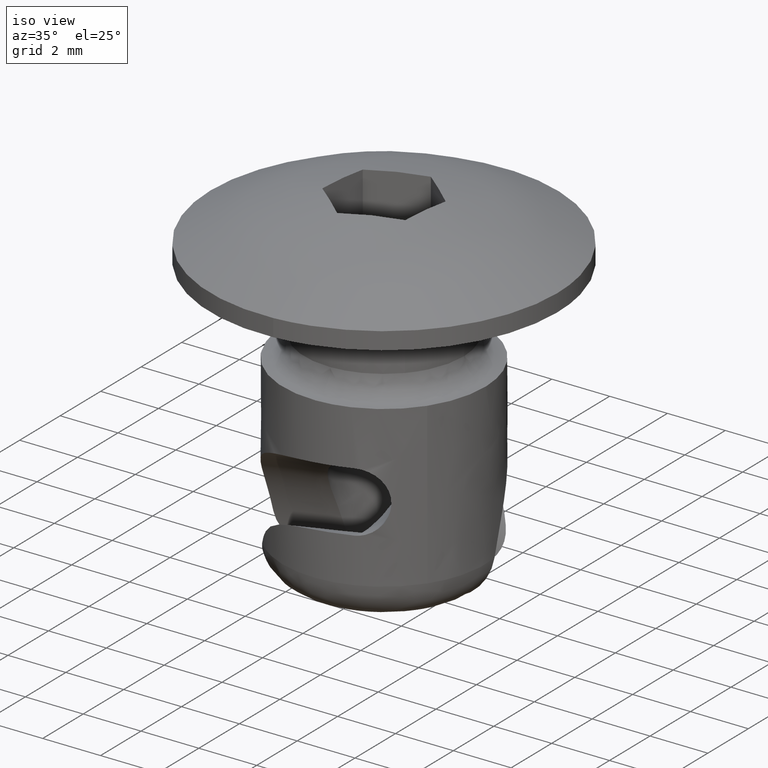
[diagram: clean part render]
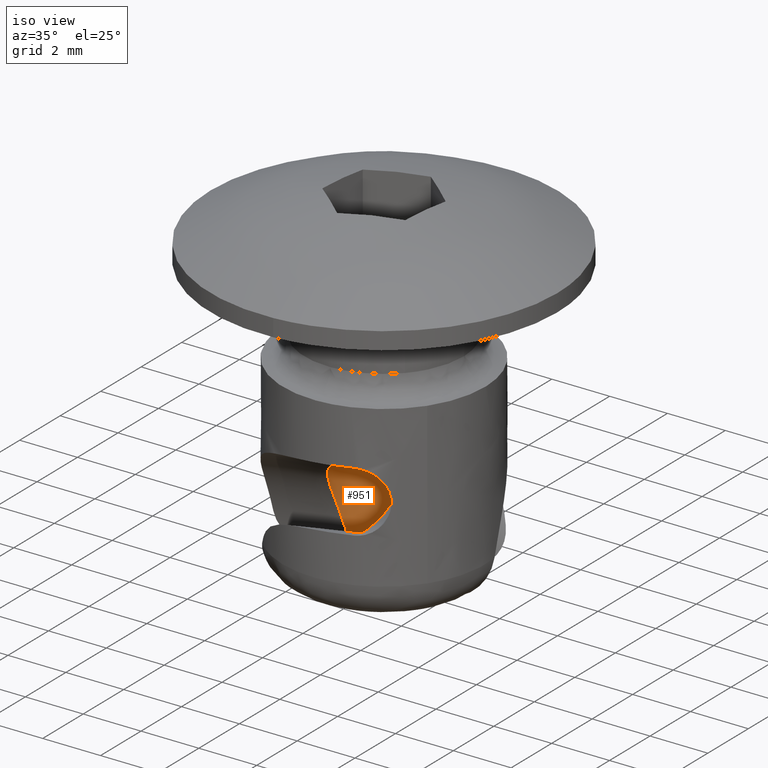
[diagram: same view with one face highlighted and labeled with its STEP entity id]
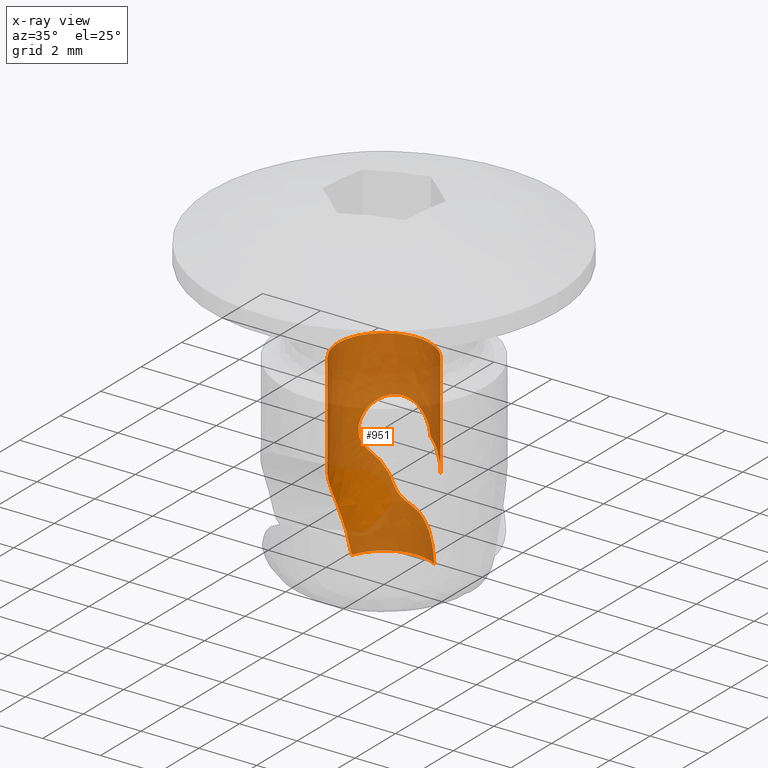
[diagram: x-ray of the same camera — body ghosted, the highlighted face saturated]
A machine part, iso view. The second image highlights one B-rep face of the part: STEP entity #951.
The next image is the same camera in x-ray: the body ghosted, the highlighted face saturated — about 82% of this face is hidden behind the body in this view.
In plain terms, the highlighted face is a freeform B-spline surface patch.
Its self-contained STEP definition (entity closure, byte-faithful):
#492=CARTESIAN_POINT('',(1.353832909804575,0.852746609385159,-0.466488213861251));
#493=VERTEX_POINT('',#492);
#651=CARTESIAN_POINT('',(-1.302828910628460,-0.928785773780717,-0.367023212930191));
#652=VERTEX_POINT('',#651);
#670=CARTESIAN_POINT('',(-1.302829351865221,-0.928784960664564,3.256407000000069));
#671=VERTEX_POINT('',#670);
#672=CARTESIAN_POINT('',(-1.302829351865221,-0.928784960664564,3.256407000000069));
#673=CARTESIAN_POINT('',(-1.302828910628460,-0.928785773780717,-0.367023212930191));
#674=QUASI_UNIFORM_CURVE('',1,(#672,#673),.UNSPECIFIED.,.F.,.U.);
#675=EDGE_CURVE('',#671,#652,#674,.T.);
#694=CARTESIAN_POINT('',(1.353821290277487,0.852738810538615,3.256407000000070));
#695=VERTEX_POINT('',#694);
#709=CARTESIAN_POINT('',(1.353821290277487,0.852738810538615,3.256407000000070));
#710=CARTESIAN_POINT('',(1.353832909804575,0.852746609385159,-0.466488213861251));
#711=QUASI_UNIFORM_CURVE('',1,(#709,#710),.UNSPECIFIED.,.F.,.U.);
#712=EDGE_CURVE('',#695,#493,#711,.T.);
#717=CARTESIAN_POINT('',(-1.302828818894610,-0.928785708282906,3.426407000000071));
#718=CARTESIAN_POINT('',(-2.231607337174539,0.374046001486908,3.426407000000071));
#719=CARTESIAN_POINT('',(-0.928775627404724,1.302824519766837,3.426407000000070));
#720=CARTESIAN_POINT('',(0.374056082365090,2.231603038046767,3.426407000000070));
#721=CARTESIAN_POINT('',(1.302834600645019,0.928771328276952,3.426407000000070));
#722=CARTESIAN_POINT('',(1.329415842807951,0.891484844477700,3.426407000000070));
#723=CARTESIAN_POINT('',(1.353821076683912,0.852739149639486,3.426407000000069));
#724=CARTESIAN_POINT('',(-1.302828818894610,-0.928785708282906,-3.717842999999955));
#725=CARTESIAN_POINT('',(-2.231607337174539,0.374046001486908,-3.717842999999955));
#726=CARTESIAN_POINT('',(-0.928775627404724,1.302824519766837,-3.717842999999956));
#727=CARTESIAN_POINT('',(0.374056082365090,2.231603038046767,-3.717842999999956));
#728=CARTESIAN_POINT('',(1.302834600645019,0.928771328276952,-3.717842999999956));
#729=CARTESIAN_POINT('',(1.329415842807951,0.891484844477700,-3.717842999999957));
#730=CARTESIAN_POINT('',(1.353821076683912,0.852739149639486,-3.717842999999956));
#738=(BOUNDED_SURFACE()B_SPLINE_SURFACE(2,1,((#717,#724),(#718,#725),(#719,#726),(#720,#727),(#721,#728),(#722,#729),(#723,#730)),.UNSPECIFIED.,.F.,.F.,.U.)B_SPLINE_SURFACE_WITH_KNOTS((3,2,2,3),(2,2),(0.0,1.570796326794897,3.141592653589793,3.204424506661589),(0.0,7.144250000000027),.UNSPECIFIED.)GEOMETRIC_REPRESENTATION_ITEM()RATIONAL_B_SPLINE_SURFACE(((1.0,1.0),(0.707106781186548,0.707106781186548),(1.0,1.0),(0.707106781186548,0.707106781186548),(1.0,1.0),(0.988284271247462,0.988284271247462),(0.977505800795127,0.977505800795127)))REPRESENTATION_ITEM('')SURFACE());
#739=CARTESIAN_POINT('',(0.546051074430318,1.503931432825815,0.357760098432948));
#740=VERTEX_POINT('',#739);
#741=CARTESIAN_POINT('',(1.353832909804575,0.852746609385159,-0.466488213861251));
#742=CARTESIAN_POINT('',(1.336671994953911,0.879969277479721,-0.430466330130292));
#743=CARTESIAN_POINT('',(1.318383997476173,0.907155412973069,-0.394948716176555));
#744=CARTESIAN_POINT('',(1.278753149050532,0.962255293578778,-0.323772717969398));
#745=CARTESIAN_POINT('',(1.257311104183879,0.990160523197365,-0.288143532586292));
#746=CARTESIAN_POINT('',(1.211566087473449,1.045638148637535,-0.217977983368935));
#747=CARTESIAN_POINT('',(1.187172673593441,1.073302197670375,-0.183328594396439));
#748=CARTESIAN_POINT('',(1.110070935897083,1.154682638314616,-0.082104369881050));
#749=CARTESIAN_POINT('',(1.053478780840469,1.206841993684686,-0.018188080758643));
#750=CARTESIAN_POINT('',(0.928671461676780,1.305319629079178,0.102590803177756));
#751=CARTESIAN_POINT('',(0.860473067383469,1.351654031791112,0.159457348700588));
#752=CARTESIAN_POINT('',(0.710497744090948,1.436168450367624,0.266026612455124));
#753=CARTESIAN_POINT('',(0.630685987149891,1.473201461450052,0.314310480531771));
#754=CARTESIAN_POINT('',(0.546051074430318,1.503931432825815,0.357760098432948));
#755=B_SPLINE_CURVE_WITH_KNOTS('',3,(#741,#742,#743,#744,#745,#746,#747,#748,#749,#750,#751,#752,#753,#754),.UNSPECIFIED.,.F.,.U.,(4,2,2,2,2,2,4),(0.719754619346271,0.750000000000000,0.781250000000000,0.812500000000000,0.875000000000000,0.937500000000000,1.0),.UNSPECIFIED.);
#756=EDGE_CURVE('',#493,#740,#755,.T.);
#757=ORIENTED_EDGE('',*,*,#756,.F.);
#758=ORIENTED_EDGE('',*,*,#712,.F.);
#759=CARTESIAN_POINT('',(-1.599997109124796,-0.000007190002977,3.256407000000070));
#760=VERTEX_POINT('',#759);
#761=CARTESIAN_POINT('',(-1.599997109124796,-0.000007190002977,3.256407000000070));
#762=CARTESIAN_POINT('',(-1.599997109124795,1.599992809997023,3.256407000000069));
#763=CARTESIAN_POINT('',(0.000002890875205,1.599992809997023,3.256407000000070));
#764=CARTESIAN_POINT('',(0.883139619989231,1.599992809997023,3.256407000000070));
#765=CARTESIAN_POINT('',(1.353821290277487,0.852738810538615,3.256407000000070));
#773=(BOUNDED_CURVE()B_SPLINE_CURVE(2,(#761,#762,#763,#764,#765),.UNSPECIFIED.,.F.,.U.)B_SPLINE_CURVE_WITH_KNOTS((3,2,3),(0.500000000000000,0.750000000000000,0.908833472197834),.UNSPECIFIED.)CURVE()GEOMETRIC_REPRESENTATION_ITEM()RATIONAL_B_SPLINE_CURVE((1.0,0.707106781186548,1.0,0.813915012290638,0.864282222355429))REPRESENTATION_ITEM(''));
#774=EDGE_CURVE('',#760,#695,#773,.T.);
#775=ORIENTED_EDGE('',*,*,#774,.F.);
#776=CARTESIAN_POINT('',(-1.302829351865222,-0.928784960664564,3.256407000000069));
#777=CARTESIAN_POINT('',(-1.599997109124796,-0.511935830640980,3.256407000000070));
#778=CARTESIAN_POINT('',(-1.599997109124796,-0.000007190002977,3.256407000000070));
#786=(BOUNDED_CURVE()B_SPLINE_CURVE(2,(#776,#777,#778),.UNSPECIFIED.,.F.,.U.)B_SPLINE_CURVE_WITH_KNOTS((3,3),(0.400116261808443,0.500000000000000),.UNSPECIFIED.)CURVE()GEOMETRIC_REPRESENTATION_ITEM()RATIONAL_B_SPLINE_CURVE((0.859465865329429,0.882978921655819,1.0))REPRESENTATION_ITEM(''));
#787=EDGE_CURVE('',#671,#760,#786,.T.);
#788=ORIENTED_EDGE('',*,*,#787,.F.);
#789=ORIENTED_EDGE('',*,*,#675,.T.);
#790=CARTESIAN_POINT('',(-1.503359815545855,0.547624595909950,-3.543592999999905));
#791=VERTEX_POINT('',#790);
#792=CARTESIAN_POINT('',(-1.503359815545855,0.547624595909950,-3.543592999999905));
#793=CARTESIAN_POINT('',(-1.513621984418192,0.519452816319204,-3.344741007177307));
#794=CARTESIAN_POINT('',(-1.527555604819709,0.478921665012674,-3.149863782134681));
#795=CARTESIAN_POINT('',(-1.555895963443476,0.376803851589659,-2.766526719250097));
#796=CARTESIAN_POINT('',(-1.570272821559529,0.315223688769809,-2.578063079662633));
#797=CARTESIAN_POINT('',(-1.586694036894823,0.208983095426098,-2.299260983774332));
#798=CARTESIAN_POINT('',(-1.591310455796662,0.171248529569153,-2.206978672001575));
#799=CARTESIAN_POINT('',(-1.597889535041673,0.091351903576480,-2.023594874932581));
#800=CARTESIAN_POINT('',(-1.599845570967405,0.049124266780610,-1.932383178657439));
#801=CARTESIAN_POINT('',(-1.600274725107405,-0.082636212799923,-1.662942778908637));
#802=CARTESIAN_POINT('',(-1.593406927754837,-0.177562563065252,-1.488086511821219));
#803=CARTESIAN_POINT('',(-1.557784110304411,-0.379191076218788,-1.147278637430523));
#804=CARTESIAN_POINT('',(-1.529151294759185,-0.485925709920912,-0.981333753021016));
#805=CARTESIAN_POINT('',(-1.440188938537422,-0.706979313825233,-0.660653920979855));
#806=CARTESIAN_POINT('',(-1.381413571306703,-0.818567695229631,-0.509619602682310));
#807=CARTESIAN_POINT('',(-1.302828910628460,-0.928785773780717,-0.367023212930191));
#808=B_SPLINE_CURVE_WITH_KNOTS('',3,(#792,#793,#794,#795,#796,#797,#798,#799,#800,#801,#802,#803,#804,#805,#806,#807),.UNSPECIFIED.,.F.,.U.,(4,2,2,2,2,2,2,4),(0.0,0.125000000000000,0.250000000000000,0.312500000000000,0.375000000000000,0.500000000000000,0.625000000000000,0.747959507539701),.UNSPECIFIED.);
#809=EDGE_CURVE('',#791,#652,#808,.T.);
#810=ORIENTED_EDGE('',*,*,#809,.F.);
#811=CARTESIAN_POINT('',(0.750799656490748,1.412899111468782,-3.543592999999900));
#812=VERTEX_POINT('',#811);
#813=CARTESIAN_POINT('',(-1.503359815545855,0.547624595909950,-3.543592999999905));
#814=CARTESIAN_POINT('',(-1.253875434770004,1.232510907371578,-3.543592999999954));
#815=CARTESIAN_POINT('',(-0.573376451824021,1.493725091688024,-3.543592999999955));
#816=CARTESIAN_POINT('',(0.107122531121963,1.754939276004470,-3.543592999999954));
#817=CARTESIAN_POINT('',(0.750799656490748,1.412899111468782,-3.543592999999900));
#825=(BOUNDED_CURVE()B_SPLINE_CURVE(2,(#813,#814,#815,#816,#817),.UNSPECIFIED.,.F.,.U.)B_SPLINE_CURVE_WITH_KNOTS((3,2,3),(0.0,0.500000000000000,1.0),.UNSPECIFIED.)CURVE()GEOMETRIC_REPRESENTATION_ITEM()RATIONAL_B_SPLINE_CURVE((1.0,0.910015066576051,1.0,0.910015066576051,1.0))REPRESENTATION_ITEM(''));
#826=EDGE_CURVE('',#791,#812,#825,.T.);
#827=ORIENTED_EDGE('',*,*,#826,.T.);
#828=CARTESIAN_POINT('',(-0.105987559424696,1.596478332776740,-2.071315861465660));
#829=VERTEX_POINT('',#828);
#830=CARTESIAN_POINT('',(0.750799656490748,1.412899111468782,-3.543592999999900));
#831=CARTESIAN_POINT('',(0.741102024468841,1.418052284577233,-3.392818951200645));
#832=CARTESIAN_POINT('',(0.718554965610163,1.430142116013412,-3.245947987537702));
#833=CARTESIAN_POINT('',(0.663533054637406,1.456062434767411,-3.031679388322179));
#834=CARTESIAN_POINT('',(0.641604614956335,1.465989009739263,-2.961274867127738));
#835=CARTESIAN_POINT('',(0.602501467545742,1.482286597547459,-2.857340824728785));
#836=CARTESIAN_POINT('',(0.588427392435371,1.487951903861096,-2.822975858365176));
#837=CARTESIAN_POINT('',(0.557993024847906,1.499630322677421,-2.754842971675864));
#838=CARTESIAN_POINT('',(0.541626303757528,1.505642572793314,-2.721090802137999));
#839=CARTESIAN_POINT('',(0.489584108519560,1.523691845139187,-2.622318034976711));
#840=CARTESIAN_POINT('',(0.450767441917444,1.535842349706717,-2.559259171277220));
#841=CARTESIAN_POINT('',(0.385531331611974,1.553013557977800,-2.469183036097847));
#842=CARTESIAN_POINT('',(0.362613350617381,1.558558279422315,-2.439911828010584));
#843=CARTESIAN_POINT('',(0.314229096496706,1.569028998139295,-2.382965720809901));
#844=CARTESIAN_POINT('',(0.288634598855065,1.573974513667480,-2.355170109258829));
#845=CARTESIAN_POINT('',(0.208856274389761,1.587218984666982,-2.275532439042469));
#846=CARTESIAN_POINT('',(0.151671992363275,1.593977548042792,-2.227287026133265));
#847=CARTESIAN_POINT('',(0.059463899821591,1.599183887943100,-2.162536223052235));
#848=CARTESIAN_POINT('',(0.027652009149825,1.600093400112382,-2.142226698608241));
#849=CARTESIAN_POINT('',(-0.038267950177305,1.599874591552779,-2.104296330992328));
#850=CARTESIAN_POINT('',(-0.071934264731794,1.598739126242798,-2.086942050275441));
#851=CARTESIAN_POINT('',(-0.105987559424696,1.596478332776740,-2.071315861465660));
#852=B_SPLINE_CURVE_WITH_KNOTS('',3,(#830,#831,#832,#833,#834,#835,#836,#837,#838,#839,#840,#841,#842,#843,#844,#845,#846,#847,#848,#849,#850,#851),.UNSPECIFIED.,.F.,.U.,(4,2,2,2,2,2,2,2,2,2,4),(0.0,0.250000000000000,0.375000000000000,0.437500000000000,0.500000000000000,0.625000000000001,0.687500000000001,0.750000000000001,0.875000000000000,0.937500000000000,1.0),.UNSPECIFIED.);
#853=EDGE_CURVE('',#812,#829,#852,.T.);
#854=ORIENTED_EDGE('',*,*,#853,.T.);
#855=CARTESIAN_POINT('',(-0.672045298153660,1.451516563494296,-1.488970038982920));
#856=VERTEX_POINT('',#855);
#857=CARTESIAN_POINT('',(-0.105987559424696,1.596478332776740,-2.071315861465660));
#858=CARTESIAN_POINT('',(-0.139907046037473,1.593579622572283,-2.054838086711063));
#859=CARTESIAN_POINT('',(-0.205868267437792,1.587942672115034,-2.022794731775288));
#860=CARTESIAN_POINT('',(-0.297247743480496,1.572817697202941,-1.968222104149945));
#861=CARTESIAN_POINT('',(-0.379097226088242,1.555001340827999,-1.910521095992739));
#862=CARTESIAN_POINT('',(-0.451231836699319,1.535396690350220,-1.849191324468390));
#863=CARTESIAN_POINT('',(-0.513852465895699,1.515406303737094,-1.784327171494023));
#864=CARTESIAN_POINT('',(-0.567209981960687,1.496074735451689,-1.715905096556362));
#865=CARTESIAN_POINT('',(-0.611314306282950,1.478444127954165,-1.643856196063698));
#866=CARTESIAN_POINT('',(-0.647183010149686,1.462967489643088,-1.568455451963942));
#867=CARTESIAN_POINT('',(-0.663772992376322,1.455326573358287,-1.515416826217945));
#868=CARTESIAN_POINT('',(-0.672045298153660,1.451516563494296,-1.488970038982920));
#869=B_SPLINE_CURVE_WITH_KNOTS('',3,(#857,#858,#859,#860,#861,#862,#863,#864,#865,#866,#867,#868),.UNSPECIFIED.,.F.,.U.,(4,1,1,1,1,1,1,1,1,4),(0.0,0.133086425752055,0.258805308424144,0.377782292217158,0.490755394542855,0.598586268395578,0.702265120770348,0.802905029239405,0.901722024590875,1.0),.UNSPECIFIED.);
#870=EDGE_CURVE('',#829,#856,#869,.T.);
#871=ORIENTED_EDGE('',*,*,#870,.T.);
#872=CARTESIAN_POINT('',(-1.212232091363172,1.044256353283640,-0.420718729356689));
#873=VERTEX_POINT('',#872);
#874=CARTESIAN_POINT('',(-0.672045298153660,1.451516563494296,-1.488970038982920));
#875=CARTESIAN_POINT('',(-0.685914227049318,1.445126067576757,-1.438556057472424));
#876=CARTESIAN_POINT('',(-0.716568376618162,1.430522021718328,-1.338916273838315));
#877=CARTESIAN_POINT('',(-0.770683985319542,1.402348551928514,-1.193377421310787));
#878=CARTESIAN_POINT('',(-0.832232117489249,1.366990956004324,-1.052320882063158));
#879=CARTESIAN_POINT('',(-0.900376026099111,1.323380838419215,-0.915845357115463));
#880=CARTESIAN_POINT('',(-0.974142754802714,1.270434115568713,-0.783914843066599));
#881=CARTESIAN_POINT('',(-1.052231645397192,1.206699727998528,-0.656698493933126));
#882=CARTESIAN_POINT('',(-1.132733177206144,1.132590003345547,-0.534578573007747));
#883=CARTESIAN_POINT('',(-1.185763895879432,1.073707062390380,-0.458608693711601));
#884=CARTESIAN_POINT('',(-1.212232091363172,1.044256353283640,-0.420718729356689));
#885=B_SPLINE_CURVE_WITH_KNOTS('',3,(#874,#875,#876,#877,#878,#879,#880,#881,#882,#883,#884),.UNSPECIFIED.,.F.,.U.,(4,1,1,1,1,1,1,1,4),(0.274487328514492,0.363590741908287,0.452425215500818,0.541266122305212,0.630535087466628,0.720647627196083,0.812007636217323,0.905002633807965,0.997706322431940),.UNSPECIFIED.);
#886=EDGE_CURVE('',#856,#873,#885,.T.);
#887=ORIENTED_EDGE('',*,*,#886,.T.);
#888=CARTESIAN_POINT('',(0.546051074430318,1.503931432825815,0.357760098432948));
#889=CARTESIAN_POINT('',(0.540737577268167,1.505860650833649,0.444946706512009));
#890=CARTESIAN_POINT('',(0.522165091122287,1.512729209094995,0.529521212358520));
#891=CARTESIAN_POINT('',(0.461239039016798,1.532404631985577,0.693580418952127));
#892=CARTESIAN_POINT('',(0.420350447784685,1.544631513922281,0.769511089557525));
#893=CARTESIAN_POINT('',(0.345935362711783,1.562356699587073,0.876295577165314));
#894=CARTESIAN_POINT('',(0.318899484336634,1.568160459606761,0.910636355297310));
#895=CARTESIAN_POINT('',(0.261733021681661,1.578708159017191,0.975658757057563));
#896=CARTESIAN_POINT('',(0.231468957018274,1.583487978348704,1.006541281585661));
#897=CARTESIAN_POINT('',(0.167675251720209,1.591507644165253,1.065224623823594));
#898=CARTESIAN_POINT('',(0.134145626248860,1.594750097788940,1.093025085950496));
#899=CARTESIAN_POINT('',(0.063709247224386,1.599113374738677,1.145514298883338));
#900=CARTESIAN_POINT('',(0.027449608418454,1.600190379171790,1.169717435973446));
#901=CARTESIAN_POINT('',(-0.084218555038424,1.599508073705108,1.236302979183396));
#902=CARTESIAN_POINT('',(-0.162505269217086,1.593906439278479,1.272819583420253));
#903=CARTESIAN_POINT('',(-0.286254202402971,1.574730650551564,1.314421614990932));
#904=CARTESIAN_POINT('',(-0.327824623393208,1.566623577270737,1.325784036047008));
#905=CARTESIAN_POINT('',(-0.410453360881206,1.547031434425679,1.343244653183831));
#906=CARTESIAN_POINT('',(-0.451686769164544,1.535520733568453,1.349402598158477));
#907=CARTESIAN_POINT('',(-0.513390964497784,1.515543580353762,1.354688840195979));
#908=CARTESIAN_POINT('',(-0.533934827457042,1.508432059338130,1.355790590276902));
#909=CARTESIAN_POINT('',(-0.574971391631355,1.493272097493731,1.356633577481879));
#910=CARTESIAN_POINT('',(-0.595559604676662,1.485182167386060,1.356367975235824));
#911=CARTESIAN_POINT('',(-0.656356219606653,1.459828818501390,1.353498886333640));
#912=CARTESIAN_POINT('',(-0.695642317462269,1.441491199876298,1.348865564243297));
#913=CARTESIAN_POINT('',(-0.771876494073960,1.402149034887076,1.334410960270338));
#914=CARTESIAN_POINT('',(-0.808823984344322,1.381143630063318,1.324588887024598));
#915=CARTESIAN_POINT('',(-0.880458251989058,1.336617917404983,1.299752854300621));
#916=CARTESIAN_POINT('',(-0.914747646461010,1.313326459206711,1.284846674494663));
#917=CARTESIAN_POINT('',(-0.979503174895466,1.265765967723870,1.250823255337069));
#918=CARTESIAN_POINT('',(-1.010154098958878,1.241381057125008,1.231642400023960));
#919=CARTESIAN_POINT('',(-1.068297948235041,1.191712257423510,1.189041814242874));
#920=CARTESIAN_POINT('',(-1.095864127014629,1.166336269383980,1.165512861211559));
#921=CARTESIAN_POINT('',(-1.172469099617727,1.091063740836767,1.090175144978304));
#922=CARTESIAN_POINT('',(-1.216142557500478,1.041454873332353,1.033337073931073));
#923=CARTESIAN_POINT('',(-1.291246963456990,0.946738179491198,0.905558623559984));
#924=CARTESIAN_POINT('',(-1.321558900137241,0.903018664869069,0.836445715280959));
#925=CARTESIAN_POINT('',(-1.357679485195714,0.846865811818594,0.724605709811855));
#926=CARTESIAN_POINT('',(-1.368164301377884,0.829708163160821,0.685902360059255));
#927=CARTESIAN_POINT('',(-1.386064132447512,0.799447148962501,0.605156632551558));
#928=CARTESIAN_POINT('',(-1.393329772060922,0.786603360917945,0.563710968565641));
#929=CARTESIAN_POINT('',(-1.404485196206196,0.766507833771001,0.479604118095017));
#930=CARTESIAN_POINT('',(-1.408413152739765,0.759194448757448,0.436779925365520));
#931=CARTESIAN_POINT('',(-1.411798780429720,0.752868471014671,0.371269425387099));
#932=CARTESIAN_POINT('',(-1.412505502488841,0.751538131320117,0.349132831786974));
#933=CARTESIAN_POINT('',(-1.413045882749165,0.750521620027107,0.305211620708249));
#934=CARTESIAN_POINT('',(-1.412886708432599,0.750822015348853,0.283353109106422));
#935=CARTESIAN_POINT('',(-1.411151146650710,0.754081892360647,0.218075666349204));
#936=CARTESIAN_POINT('',(-1.408325502099119,0.759400536100608,0.174954404415987));
#937=CARTESIAN_POINT('',(-1.399274810933622,0.775950843748892,0.089472285343970));
#938=CARTESIAN_POINT('',(-1.392993932610169,0.787270506432231,0.046974031495372));
#939=CARTESIAN_POINT('',(-1.377282333476076,0.814444608649534,-0.034793423135214));
#940=CARTESIAN_POINT('',(-1.367829092904543,0.830339625556566,-0.074400958655461));
#941=CARTESIAN_POINT('',(-1.345586461732791,0.865919749241154,-0.151352106760150));
#942=CARTESIAN_POINT('',(-1.332723087413702,0.885705070647765,-0.188833101495893));
#943=CARTESIAN_POINT('',(-1.289558633044386,0.948470560668524,-0.295961677116105));
#944=CARTESIAN_POINT('',(-1.254629147170219,0.995039664140726,-0.361110715953196));
#945=CARTESIAN_POINT('',(-1.212232091363172,1.044256353283640,-0.420718729356689));
#946=B_SPLINE_CURVE_WITH_KNOTS('',3,(#888,#889,#890,#891,#892,#893,#894,#895,#896,#897,#898,#899,#900,#901,#902,#903,#904,#905,#906,#907,#908,#909,#910,#911,#912,#913,#914,#915,#916,#917,#918,#919,#920,#921,#922,#923,#924,#925,#926,#927,#928,#929,#930,#931,#932,#933,#934,#935,#936,#937,#938,#939,#940,#941,#942,#943,#944,#945),.UNSPECIFIED.,.F.,.U.,(4,2,2,2,2,2,2,2,2,2,2,2,2,2,2,2,2,2,2,2,2,2,2,2,2,2,2,2,4),(0.0,0.062500000000000,0.125000000000000,0.156250000000000,0.187500000000000,0.218750000000000,0.250000000000000,0.312500000000000,0.343750000000000,0.375000000000000,0.390625000000000,0.406250000000000,0.437500000000000,0.468750000000000,0.500000000000000,0.531250000000000,0.562500000000000,0.625000000000000,0.687500000000000,0.718750000000000,0.750000000000000,0.781250000000000,0.796875000000000,0.812500000000000,0.843750000000000,0.875000000000000,0.906250000000000,0.937500000000000,1.0),.UNSPECIFIED.);
#947=EDGE_CURVE('',#740,#873,#946,.T.);
#948=ORIENTED_EDGE('',*,*,#947,.F.);
#949=EDGE_LOOP('',(#757,#758,#775,#788,#789,#810,#827,#854,#871,#887,#948));
#950=FACE_OUTER_BOUND('',#949,.T.);
#951=ADVANCED_FACE('',(#950),#738,.F.);